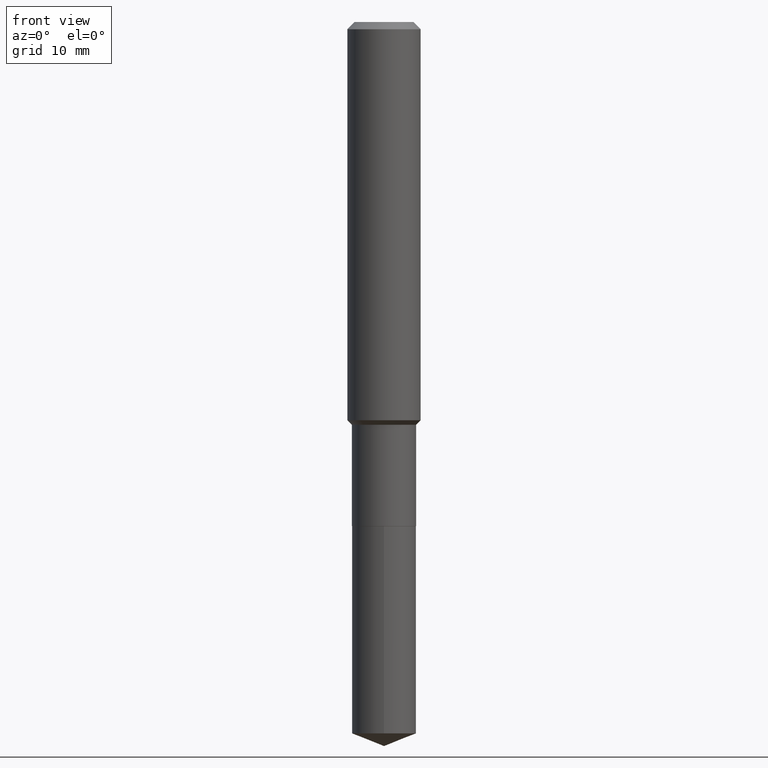
[diagram: clean part render]
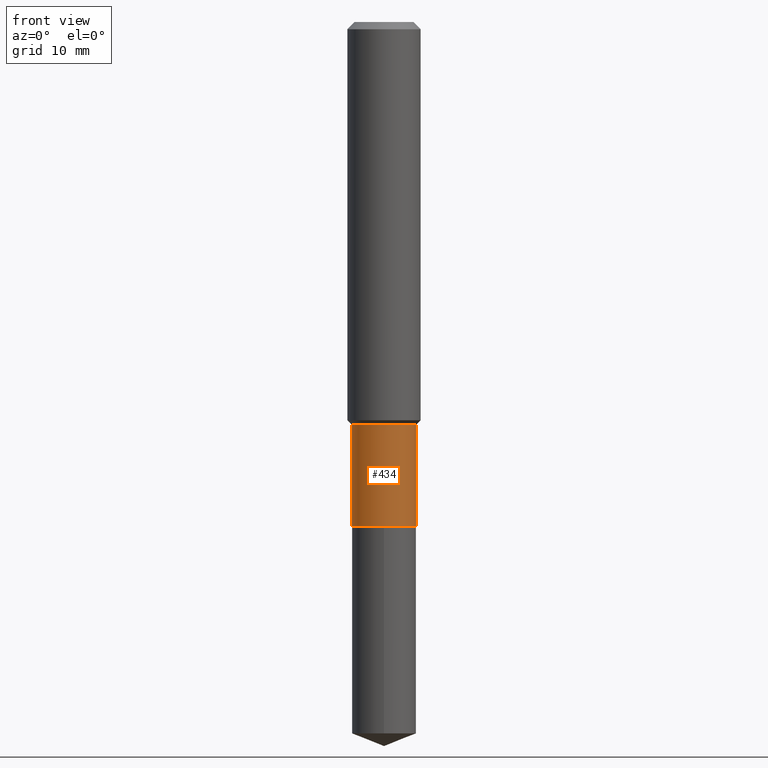
[diagram: same view with one face highlighted and labeled with its STEP entity id]
A machine part, front view. The second image highlights one B-rep face of the part: STEP entity #434.
In plain terms, the highlighted cylindrical surface (edge-blend (fillet) strip) has radius 3.5001 mm, axis along (-0, 0, 1).
Its self-contained STEP definition (entity closure, byte-faithful):
#7 = LINE ( 'NONE', #123, #210 ) ;
#14 = AXIS2_PLACEMENT_3D ( 'NONE', #448, #104, #255 ) ;
#23 = AXIS2_PLACEMENT_3D ( 'NONE', #54, #174, #97 ) ;
#33 = CARTESIAN_POINT ( 'NONE',  ( 4.231394675342142307E-29, -6.041310160600295064E-15, -1.730300000000000171 ) ) ;
#36 = DIRECTION ( 'NONE',  ( 1.000000000000000000, -6.982962677686268288E-15, 0.000000000000000000 ) ) ;
#54 = CARTESIAN_POINT ( 'NONE',  ( 5.293950871629583880E-29, -7.558358802327641618E-15, -2.164800000000000058 ) ) ;
#74 = FACE_OUTER_BOUND ( 'NONE', #433, .T. ) ;
#78 = DIRECTION ( 'NONE',  ( -2.445468806185136877E-29, 3.491481338843145188E-15, 1.000000000000000000 ) ) ;
#97 = DIRECTION ( 'NONE',  ( 1.000000000000000000, -6.982962677686265922E-15, 0.000000000000000000 ) ) ;
#101 = VERTEX_POINT ( 'NONE', #276 ) ;
#104 = DIRECTION ( 'NONE',  ( -2.445468806185136597E-29, 3.491481338843145583E-15, 1.000000000000000000 ) ) ;
#108 = ORIENTED_EDGE ( 'NONE', *, *, #128, .T. ) ;
#123 = CARTESIAN_POINT ( 'NONE',  ( -0.1378000000000000058, 9.791278898774180975E-16, -6.778292554371260034E-30 ) ) ;
#128 = EDGE_CURVE ( 'NONE', #266, #341, #242, .T. ) ;
#161 = DIRECTION ( 'NONE',  ( -2.445468806185136877E-29, 3.491481338843145188E-15, 1.000000000000000000 ) ) ;
#163 = CYLINDRICAL_SURFACE ( 'NONE', #14, 0.1378000000000000058 ) ;
#165 = EDGE_CURVE ( 'NONE', #101, #402, #328, .T. ) ;
#170 = EDGE_CURVE ( 'NONE', #266, #101, #7, .T. ) ;
#174 = DIRECTION ( 'NONE',  ( -2.445468806185136597E-29, 3.491481338843145583E-15, 1.000000000000000000 ) ) ;
#180 = CARTESIAN_POINT ( 'NONE',  ( 0.1377999999999999503, -7.003562417585462541E-15, -1.730300000000000171 ) ) ;
#195 = VECTOR ( 'NONE', #161, 39.37007874015748143 ) ;
#210 = VECTOR ( 'NONE', #78, 39.37007874015748143 ) ;
#217 = ORIENTED_EDGE ( 'NONE', *, *, #170, .F. ) ;
#242 = CIRCLE ( 'NONE', #23, 0.1378000000000000058 ) ;
#253 = CARTESIAN_POINT ( 'NONE',  ( 0.1378000000000000058, -8.520611059312809095E-15, -2.164800000000000058 ) ) ;
#255 = DIRECTION ( 'NONE',  ( 1.000000000000000000, -6.982962677686265922E-15, 4.876176775795934672E-29 ) ) ;
#264 = DIRECTION ( 'NONE',  ( -2.445468806185136597E-29, 3.491481338843145583E-15, 1.000000000000000000 ) ) ;
#266 = VERTEX_POINT ( 'NONE', #350 ) ;
#276 = CARTESIAN_POINT ( 'NONE',  ( -0.1377999999999999503, -5.820706591586550441E-15, -1.730300000000000171 ) ) ;
#289 = AXIS2_PLACEMENT_3D ( 'NONE', #33, #264, #36 ) ;
#293 = EDGE_CURVE ( 'NONE', #341, #402, #298, .T. ) ;
#298 = LINE ( 'NONE', #408, #195 ) ;
#328 = CIRCLE ( 'NONE', #289, 0.1377999999999999503 ) ;
#329 = ORIENTED_EDGE ( 'NONE', *, *, #293, .T. ) ;
#341 = VERTEX_POINT ( 'NONE', #253 ) ;
#350 = CARTESIAN_POINT ( 'NONE',  ( -0.1378000000000000336, -5.820706591586550441E-15, -2.164800000000000058 ) ) ;
#402 = VERTEX_POINT ( 'NONE', #180 ) ;
#408 = CARTESIAN_POINT ( 'NONE',  ( 0.1378000000000000058, -9.622522569851674770E-16, 6.719371597046798536E-30 ) ) ;
#433 = EDGE_LOOP ( 'NONE', ( #217, #108, #329, #439 ) ) ;
#434 = ADVANCED_FACE ( 'NONE', ( #74 ), #163, .T. ) ;
#439 = ORIENTED_EDGE ( 'NONE', *, *, #165, .F. ) ;
#448 = CARTESIAN_POINT ( 'NONE',  ( 0.000000000000000000, 0.000000000000000000, 0.000000000000000000 ) ) ;